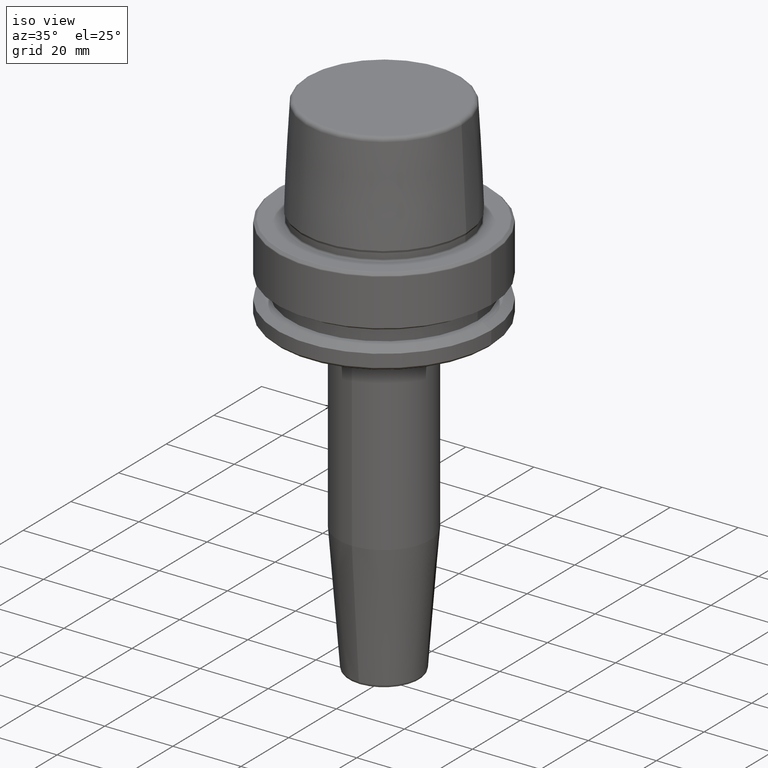
[diagram: clean part render]
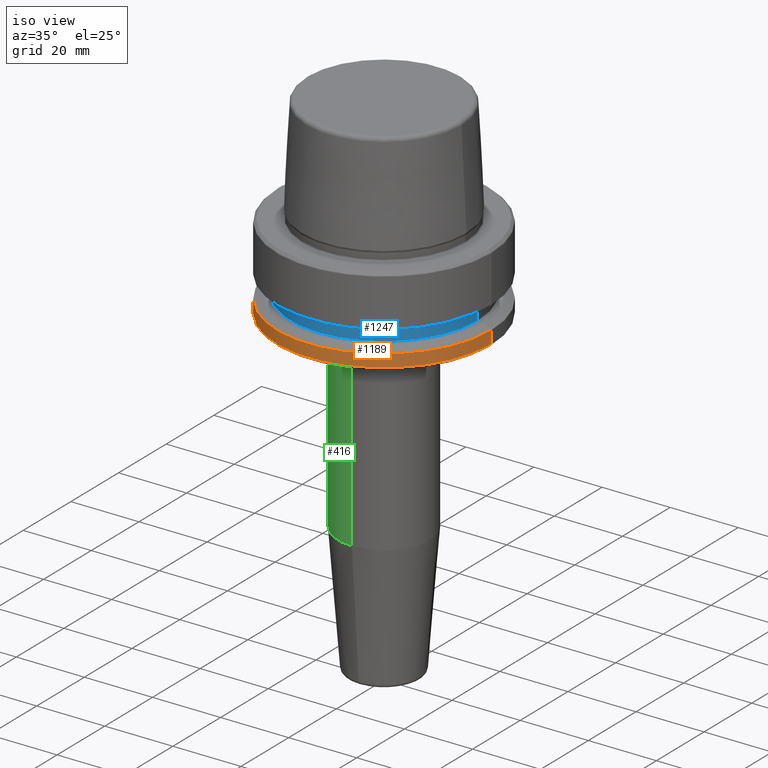
[diagram: same view with three faces highlighted in distinct colors, each labeled with its STEP entity id]
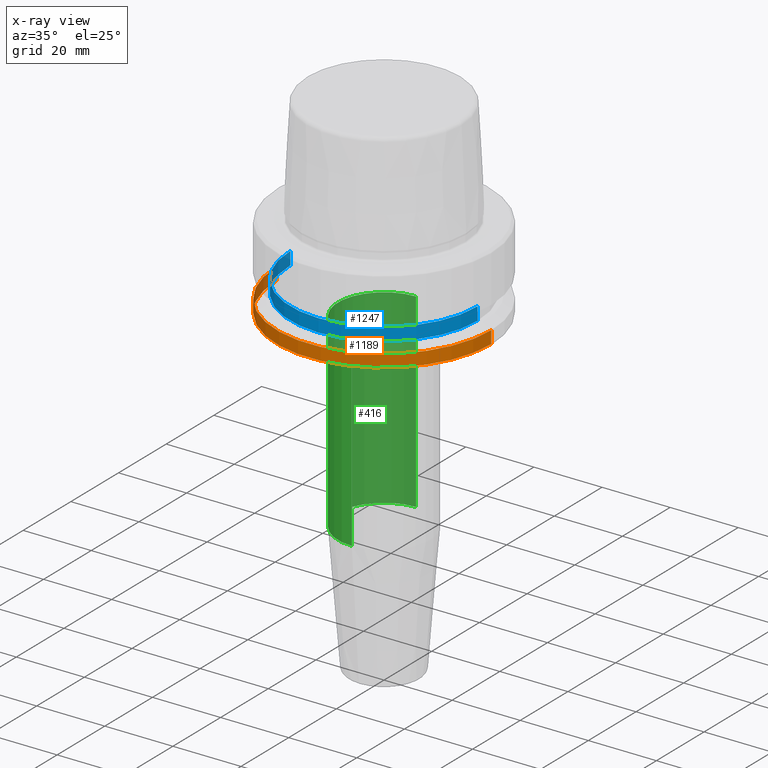
[diagram: x-ray of the same camera — body ghosted, the three highlighted faces saturated]
A machine part, iso view with three faces highlighted in distinct colors.
The next image is the same camera in x-ray (body ghosted, the three faces saturated) — at least one of them is partly hidden behind the body in this view.
Their STEP definitions:

[orange] entity #1189 — the highlighted cylindrical surface (partial cylindrical patch) has radius 31.5 mm, axis along (-0, -0, 1).
#107 = CARTESIAN_POINT ( 'NONE',  ( 0.0000000000000000000, 0.0000000000000000000, -21.37749907475931700 ) ) ;
#117 = ORIENTED_EDGE ( 'NONE', *, *, #809, .T. ) ;
#121 = ORIENTED_EDGE ( 'NONE', *, *, #556, .F. ) ;
#138 = CARTESIAN_POINT ( 'NONE',  ( 31.50000000000000000, 0.0000000000000000000, 78.96908074195309300 ) ) ;
#169 = AXIS2_PLACEMENT_3D ( 'NONE', #107, #781, #205 ) ;
#205 = DIRECTION ( 'NONE',  ( 1.000000000000000000, 0.0000000000000000000, 0.0000000000000000000 ) ) ;
#216 = EDGE_CURVE ( 'NONE', #919, #768, #1157, .T. ) ;
#253 = DIRECTION ( 'NONE',  ( -0.0000000000000000000, -0.0000000000000000000, 1.000000000000000000 ) ) ;
#280 = CARTESIAN_POINT ( 'NONE',  ( 31.50000000000000000, 0.0000000000000000000, -25.03431457505077200 ) ) ;
#287 = AXIS2_PLACEMENT_3D ( 'NONE', #1081, #585, #980 ) ;
#339 = AXIS2_PLACEMENT_3D ( 'NONE', #563, #1253, #658 ) ;
#345 = CARTESIAN_POINT ( 'NONE',  ( -31.50000000000000000, 3.857637417314162700E-015, 78.96908074195309300 ) ) ;
#431 = DIRECTION ( 'NONE',  ( -0.0000000000000000000, -0.0000000000000000000, 1.000000000000000000 ) ) ;
#438 = VECTOR ( 'NONE', #253, 1000.000000000000000 ) ;
#457 = LINE ( 'NONE', #345, #438 ) ;
#480 = EDGE_LOOP ( 'NONE', ( #121, #117, #845, #939 ) ) ;
#483 = CIRCLE ( 'NONE', #339, 31.50000000000000000 ) ;
#486 = CARTESIAN_POINT ( 'NONE',  ( -31.50000000000000000, 3.857637417314161900E-015, -25.03431457505077200 ) ) ;
#556 = EDGE_CURVE ( 'NONE', #1174, #705, #457, .T. ) ;
#563 = CARTESIAN_POINT ( 'NONE',  ( 0.0000000000000000000, 0.0000000000000000000, -25.03431457505077200 ) ) ;
#585 = DIRECTION ( 'NONE',  ( -0.0000000000000000000, -0.0000000000000000000, 1.000000000000000000 ) ) ;
#638 = FACE_OUTER_BOUND ( 'NONE', #480, .T. ) ;
#658 = DIRECTION ( 'NONE',  ( 1.000000000000000000, 0.0000000000000000000, 0.0000000000000000000 ) ) ;
#705 = VERTEX_POINT ( 'NONE', #714 ) ;
#714 = CARTESIAN_POINT ( 'NONE',  ( -31.50000000000000000, 3.857637417314162700E-015, -21.37749907475931700 ) ) ;
#741 = CARTESIAN_POINT ( 'NONE',  ( 31.50000000000000000, 0.0000000000000000000, -21.37749907475931700 ) ) ;
#768 = VERTEX_POINT ( 'NONE', #741 ) ;
#781 = DIRECTION ( 'NONE',  ( -0.0000000000000000000, -0.0000000000000000000, 1.000000000000000000 ) ) ;
#809 = EDGE_CURVE ( 'NONE', #1174, #919, #483, .T. ) ;
#845 = ORIENTED_EDGE ( 'NONE', *, *, #216, .T. ) ;
#871 = VECTOR ( 'NONE', #431, 1000.000000000000000 ) ;
#908 = CIRCLE ( 'NONE', #169, 31.50000000000000000 ) ;
#919 = VERTEX_POINT ( 'NONE', #280 ) ;
#939 = ORIENTED_EDGE ( 'NONE', *, *, #1178, .F. ) ;
#980 = DIRECTION ( 'NONE',  ( 1.000000000000000000, 0.0000000000000000000, 0.0000000000000000000 ) ) ;
#1081 = CARTESIAN_POINT ( 'NONE',  ( 0.0000000000000000000, 0.0000000000000000000, 78.96908074195309300 ) ) ;
#1134 = CYLINDRICAL_SURFACE ( 'NONE', #287, 31.50000000000000000 ) ;
#1157 = LINE ( 'NONE', #138, #871 ) ;
#1174 = VERTEX_POINT ( 'NONE', #486 ) ;
#1178 = EDGE_CURVE ( 'NONE', #705, #768, #908, .T. ) ;
#1189 = ADVANCED_FACE ( 'NONE', ( #638 ), #1134, .T. ) ;
#1253 = DIRECTION ( 'NONE',  ( -0.0000000000000000000, -0.0000000000000000000, 1.000000000000000000 ) ) ;

[blue] entity #1247 — the highlighted cylindrical surface (partial cylindrical patch) has radius 27.5 mm, axis along (-0, -0, 1).
#21 = DIRECTION ( 'NONE',  ( -0.0000000000000000000, -0.0000000000000000000, 1.000000000000000000 ) ) ;
#26 = DIRECTION ( 'NONE',  ( 1.000000000000000000, 0.0000000000000000000, 0.0000000000000000000 ) ) ;
#32 = EDGE_CURVE ( 'NONE', #840, #293, #1254, .T. ) ;
#127 = VECTOR ( 'NONE', #893, 1000.000000000000000 ) ;
#210 = CARTESIAN_POINT ( 'NONE',  ( -27.49999999999999600, 3.367778697655220900E-015, 78.96908074195309300 ) ) ;
#256 = CARTESIAN_POINT ( 'NONE',  ( 27.49999999999999600, 0.0000000000000000000, 78.96908074195309300 ) ) ;
#283 = CIRCLE ( 'NONE', #487, 27.49999999999999600 ) ;
#293 = VERTEX_POINT ( 'NONE', #364 ) ;
#350 = VERTEX_POINT ( 'NONE', #1068 ) ;
#364 = CARTESIAN_POINT ( 'NONE',  ( 27.49999999999999600, 0.0000000000000000000, -16.10000000000001600 ) ) ;
#395 = CARTESIAN_POINT ( 'NONE',  ( 0.0000000000000000000, 0.0000000000000000000, -16.10000000000001600 ) ) ;
#472 = CARTESIAN_POINT ( 'NONE',  ( -27.49999999999999600, 3.367778697655220900E-015, -16.10000000000001600 ) ) ;
#485 = VECTOR ( 'NONE', #944, 1000.000000000000000 ) ;
#487 = AXIS2_PLACEMENT_3D ( 'NONE', #592, #21, #686 ) ;
#489 = DIRECTION ( 'NONE',  ( 1.000000000000000000, 0.0000000000000000000, 0.0000000000000000000 ) ) ;
#513 = ORIENTED_EDGE ( 'NONE', *, *, #1203, .F. ) ;
#520 = FACE_OUTER_BOUND ( 'NONE', #884, .T. ) ;
#592 = CARTESIAN_POINT ( 'NONE',  ( 0.0000000000000000000, 0.0000000000000000000, -19.90000000000001600 ) ) ;
#595 = CARTESIAN_POINT ( 'NONE',  ( 0.0000000000000000000, 0.0000000000000000000, 78.96908074195309300 ) ) ;
#606 = LINE ( 'NONE', #210, #127 ) ;
#622 = AXIS2_PLACEMENT_3D ( 'NONE', #395, #1086, #489 ) ;
#662 = CIRCLE ( 'NONE', #622, 27.49999999999999600 ) ;
#686 = DIRECTION ( 'NONE',  ( 1.000000000000000000, 0.0000000000000000000, 0.0000000000000000000 ) ) ;
#729 = ORIENTED_EDGE ( 'NONE', *, *, #1214, .T. ) ;
#739 = CYLINDRICAL_SURFACE ( 'NONE', #1173, 27.49999999999999600 ) ;
#759 = CARTESIAN_POINT ( 'NONE',  ( 27.49999999999999600, 0.0000000000000000000, -19.90000000000001600 ) ) ;
#787 = DIRECTION ( 'NONE',  ( -0.0000000000000000000, -0.0000000000000000000, 1.000000000000000000 ) ) ;
#840 = VERTEX_POINT ( 'NONE', #759 ) ;
#884 = EDGE_LOOP ( 'NONE', ( #513, #729, #1045, #1224 ) ) ;
#886 = VERTEX_POINT ( 'NONE', #472 ) ;
#893 = DIRECTION ( 'NONE',  ( -0.0000000000000000000, -0.0000000000000000000, 1.000000000000000000 ) ) ;
#944 = DIRECTION ( 'NONE',  ( -0.0000000000000000000, -0.0000000000000000000, 1.000000000000000000 ) ) ;
#1045 = ORIENTED_EDGE ( 'NONE', *, *, #32, .T. ) ;
#1068 = CARTESIAN_POINT ( 'NONE',  ( -27.49999999999999600, 3.367778697655220900E-015, -19.90000000000001600 ) ) ;
#1086 = DIRECTION ( 'NONE',  ( -0.0000000000000000000, -0.0000000000000000000, 1.000000000000000000 ) ) ;
#1118 = EDGE_CURVE ( 'NONE', #886, #293, #662, .T. ) ;
#1173 = AXIS2_PLACEMENT_3D ( 'NONE', #595, #787, #26 ) ;
#1203 = EDGE_CURVE ( 'NONE', #350, #886, #606, .T. ) ;
#1214 = EDGE_CURVE ( 'NONE', #350, #840, #283, .T. ) ;
#1224 = ORIENTED_EDGE ( 'NONE', *, *, #1118, .F. ) ;
#1247 = ADVANCED_FACE ( 'NONE', ( #520 ), #739, .T. ) ;
#1254 = LINE ( 'NONE', #256, #485 ) ;

[green] entity #416 — the highlighted cylindrical surface (partial cylindrical patch) has radius 13.5 mm, axis along (-0, 0, -1).
#54 = EDGE_CURVE ( 'NONE', #815, #259, #329, .T. ) ;
#64 = AXIS2_PLACEMENT_3D ( 'NONE', #746, #175, #852 ) ;
#145 = VECTOR ( 'NONE', #383, 1000.000000000000000 ) ;
#157 = AXIS2_PLACEMENT_3D ( 'NONE', #918, #317, #1015 ) ;
#175 = DIRECTION ( 'NONE',  ( -0.0000000000000000000, 5.211262975095120000E-017, -1.000000000000000000 ) ) ;
#186 = CARTESIAN_POINT ( 'NONE',  ( 0.0000000000000000000, 4.898587196589412200E-015, -120.0000000000000000 ) ) ;
#197 = ORIENTED_EDGE ( 'NONE', *, *, #201, .T. ) ;
#201 = EDGE_CURVE ( 'NONE', #632, #309, #375, .T. ) ;
#259 = VERTEX_POINT ( 'NONE', #923 ) ;
#309 = VERTEX_POINT ( 'NONE', #961 ) ;
#317 = DIRECTION ( 'NONE',  ( 0.0000000000000000000, 0.0000000000000000000, -1.000000000000000000 ) ) ;
#318 = FACE_OUTER_BOUND ( 'NONE', #932, .T. ) ;
#329 = CIRCLE ( 'NONE', #64, 13.49999999999998600 ) ;
#354 = CARTESIAN_POINT ( 'NONE',  ( 0.0000000000000000000, 13.49999999999999500, -120.0000000000000000 ) ) ;
#375 = CIRCLE ( 'NONE', #157, 13.49999999999998900 ) ;
#383 = DIRECTION ( 'NONE',  ( -0.0000000000000000000, 5.211262975095120000E-017, -1.000000000000000000 ) ) ;
#416 = ADVANCED_FACE ( 'NONE', ( #318 ), #548, .T. ) ;
#465 = CARTESIAN_POINT ( 'NONE',  ( 0.0000000000000000000, -13.49999999999998200, -81.88138579147243900 ) ) ;
#475 = VECTOR ( 'NONE', #1044, 1000.000000000000000 ) ;
#508 = LINE ( 'NONE', #354, #475 ) ;
#548 = CYLINDRICAL_SURFACE ( 'NONE', #1063, 13.49999999999998900 ) ;
#632 = VERTEX_POINT ( 'NONE', #791 ) ;
#643 = ORIENTED_EDGE ( 'NONE', *, *, #922, .F. ) ;
#746 = CARTESIAN_POINT ( 'NONE',  ( 0.0000000000000000000, 2.912125967721067800E-015, -81.88138579147243900 ) ) ;
#755 = DIRECTION ( 'NONE',  ( 0.0000000000000000000, 1.000000000000000000, 0.0000000000000000000 ) ) ;
#777 = EDGE_CURVE ( 'NONE', #309, #259, #508, .T. ) ;
#791 = CARTESIAN_POINT ( 'NONE',  ( 1.653273178848925900E-015, -13.49999999999999100, -26.00000000000001100 ) ) ;
#815 = VERTEX_POINT ( 'NONE', #465 ) ;
#821 = ORIENTED_EDGE ( 'NONE', *, *, #54, .F. ) ;
#852 = DIRECTION ( 'NONE',  ( 0.0000000000000000000, 1.000000000000000000, 0.0000000000000000000 ) ) ;
#860 = DIRECTION ( 'NONE',  ( -0.0000000000000000000, 5.211262975095120000E-017, -1.000000000000000000 ) ) ;
#878 = CARTESIAN_POINT ( 'NONE',  ( 1.653273178848925500E-015, -13.49999999999998400, -120.0000000000000000 ) ) ;
#889 = LINE ( 'NONE', #878, #145 ) ;
#918 = CARTESIAN_POINT ( 'NONE',  ( 0.0000000000000000000, 0.0000000000000000000, -26.00000000000001100 ) ) ;
#922 = EDGE_CURVE ( 'NONE', #632, #815, #889, .T. ) ;
#923 = CARTESIAN_POINT ( 'NONE',  ( 1.653273178848925100E-015, 13.49999999999998900, -81.88138579147243900 ) ) ;
#932 = EDGE_LOOP ( 'NONE', ( #643, #197, #1246, #821 ) ) ;
#961 = CARTESIAN_POINT ( 'NONE',  ( 0.0000000000000000000, 13.49999999999998900, -26.00000000000001100 ) ) ;
#1015 = DIRECTION ( 'NONE',  ( 1.000000000000000000, 0.0000000000000000000, 0.0000000000000000000 ) ) ;
#1044 = DIRECTION ( 'NONE',  ( -0.0000000000000000000, 5.211262975095120000E-017, -1.000000000000000000 ) ) ;
#1063 = AXIS2_PLACEMENT_3D ( 'NONE', #186, #860, #755 ) ;
#1246 = ORIENTED_EDGE ( 'NONE', *, *, #777, .T. ) ;